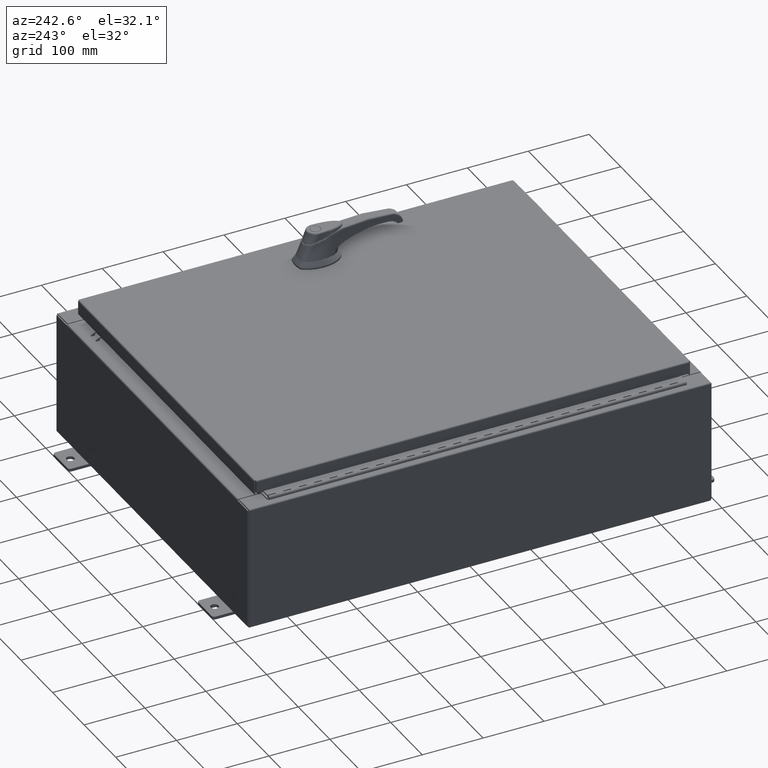
[diagram: clean part render]
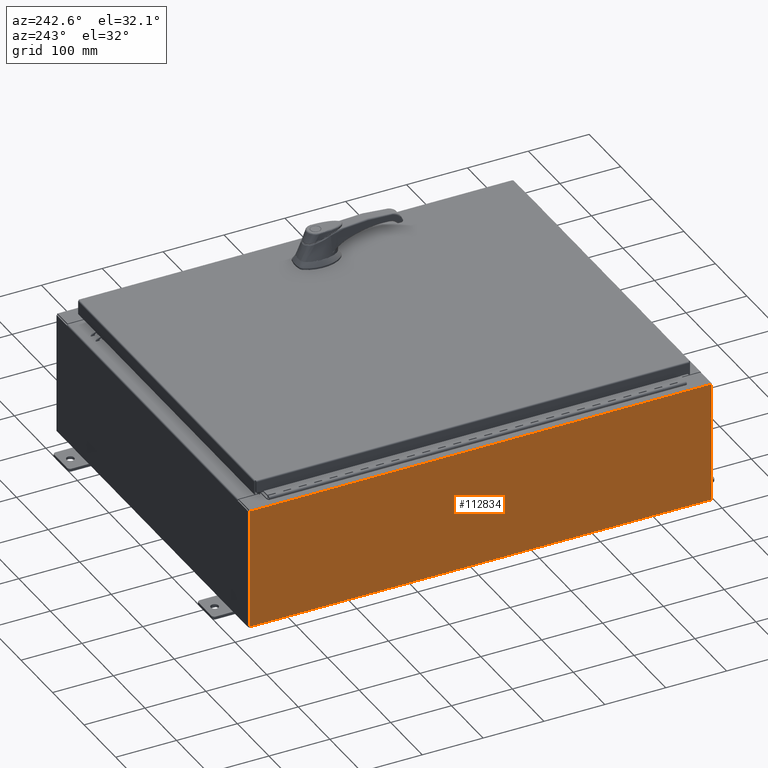
[diagram: same view with one face highlighted and labeled with its STEP entity id]
A machine part, auxiliary view. The second image highlights one B-rep face of the part: STEP entity #112834.
In plain terms, the highlighted planar face has unit normal (1, 0, 0).
Its self-contained STEP definition (entity closure, byte-faithful):
#3241 = ORIENTED_EDGE ( 'NONE', *, *, #45946, .T. ) ;
#7006 = DIRECTION ( 'NONE',  ( 1.000000000000000000, 0.0000000000000000000, 3.584876173029202900E-015 ) ) ;
#8718 = AXIS2_PLACEMENT_3D ( 'NONE', #24885, #7006, #70323 ) ;
#8892 = EDGE_CURVE ( 'NONE', #33754, #92916, #22800, .T. ) ;
#13602 = VERTEX_POINT ( 'NONE', #17944 ) ;
#13837 = CARTESIAN_POINT ( 'NONE',  ( -12.00000000000000500, 14.92530000000000000, 0.01299999999999983600 ) ) ;
#17944 = CARTESIAN_POINT ( 'NONE',  ( -12.00000000000000500, -14.92530000000000000, 0.01299999999999984700 ) ) ;
#18729 = CARTESIAN_POINT ( 'NONE',  ( -12.00000000000003400, 14.92530000000000000, 7.837599999999999200 ) ) ;
#19450 = ORIENTED_EDGE ( 'NONE', *, *, #96600, .T. ) ;
#22800 = LINE ( 'NONE', #63754, #44009 ) ;
#24678 = DIRECTION ( 'NONE',  ( -0.0000000000000000000, 1.000000000000000000, -0.0000000000000000000 ) ) ;
#24808 = CARTESIAN_POINT ( 'NONE',  ( -12.00000000000003400, -14.92530000000000000, 7.837599999999999200 ) ) ;
#24885 = CARTESIAN_POINT ( 'NONE',  ( -12.00000000000000500, 0.0000000000000000000, -4.327932773236203200E-014 ) ) ;
#27694 = EDGE_CURVE ( 'NONE', #13602, #92916, #38221, .T. ) ;
#32186 = VECTOR ( 'NONE', #77635, 39.37007874015748100 ) ;
#33754 = VERTEX_POINT ( 'NONE', #18729 ) ;
#35015 = LINE ( 'NONE', #41662, #32186 ) ;
#38221 = LINE ( 'NONE', #69736, #56597 ) ;
#41662 = CARTESIAN_POINT ( 'NONE',  ( -12.00000000000003400, -14.92530000000000000, 7.837599999999999200 ) ) ;
#43603 = VERTEX_POINT ( 'NONE', #24808 ) ;
#44009 = VECTOR ( 'NONE', #81533, 39.37007874015748100 ) ;
#45946 = EDGE_CURVE ( 'NONE', #43603, #33754, #35015, .T. ) ;
#48678 = LINE ( 'NONE', #106475, #51520 ) ;
#51520 = VECTOR ( 'NONE', #52352, 39.37007874015748100 ) ;
#52352 = DIRECTION ( 'NONE',  ( -3.584876173029202900E-015, 0.0000000000000000000, 1.000000000000000000 ) ) ;
#56597 = VECTOR ( 'NONE', #24678, 39.37007874015748100 ) ;
#63754 = CARTESIAN_POINT ( 'NONE',  ( -12.00000000000000500, 14.92530000000000000, -4.327932773236203200E-014 ) ) ;
#64612 = EDGE_LOOP ( 'NONE', ( #3241, #95045, #97549, #19450 ) ) ;
#69736 = CARTESIAN_POINT ( 'NONE',  ( -12.00000000000000500, 14.92530000000000000, 0.01299999999999984700 ) ) ;
#70323 = DIRECTION ( 'NONE',  ( 3.584876173029202900E-015, 0.0000000000000000000, -1.000000000000000000 ) ) ;
#77635 = DIRECTION ( 'NONE',  ( 0.0000000000000000000, 1.000000000000000000, 0.0000000000000000000 ) ) ;
#81533 = DIRECTION ( 'NONE',  ( 3.584876173029202900E-015, 0.0000000000000000000, -1.000000000000000000 ) ) ;
#89071 = FACE_OUTER_BOUND ( 'NONE', #64612, .T. ) ;
#92916 = VERTEX_POINT ( 'NONE', #13837 ) ;
#95045 = ORIENTED_EDGE ( 'NONE', *, *, #8892, .T. ) ;
#96600 = EDGE_CURVE ( 'NONE', #13602, #43603, #48678, .T. ) ;
#97164 = PLANE ( 'NONE',  #8718 ) ;
#97549 = ORIENTED_EDGE ( 'NONE', *, *, #27694, .F. ) ;
#106475 = CARTESIAN_POINT ( 'NONE',  ( -12.00000000000000500, -14.92530000000000000, -4.327932773236203200E-014 ) ) ;
#112834 = ADVANCED_FACE ( 'NONE', ( #89071 ), #97164, .F. ) ;